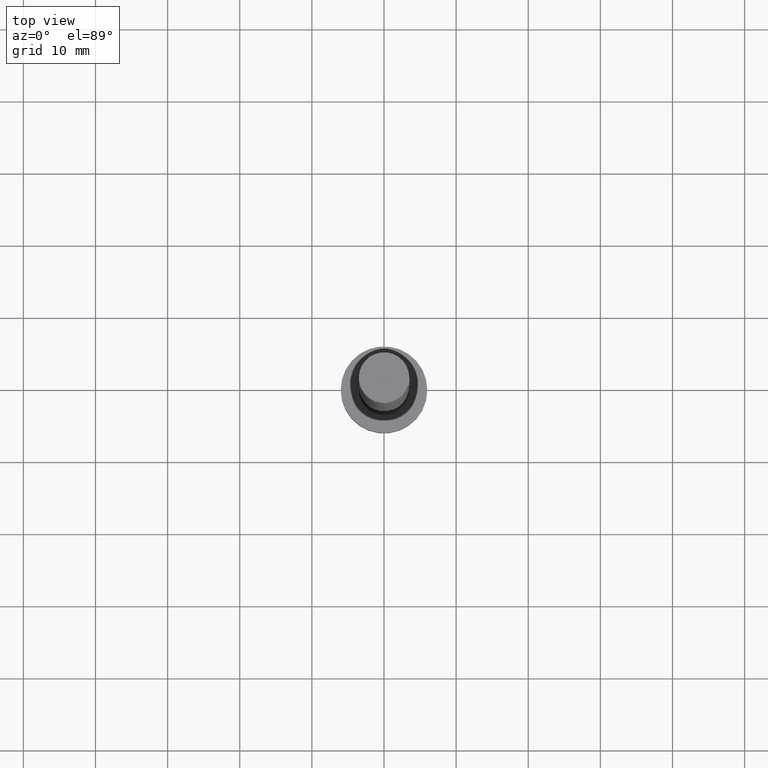
[diagram: clean part render]
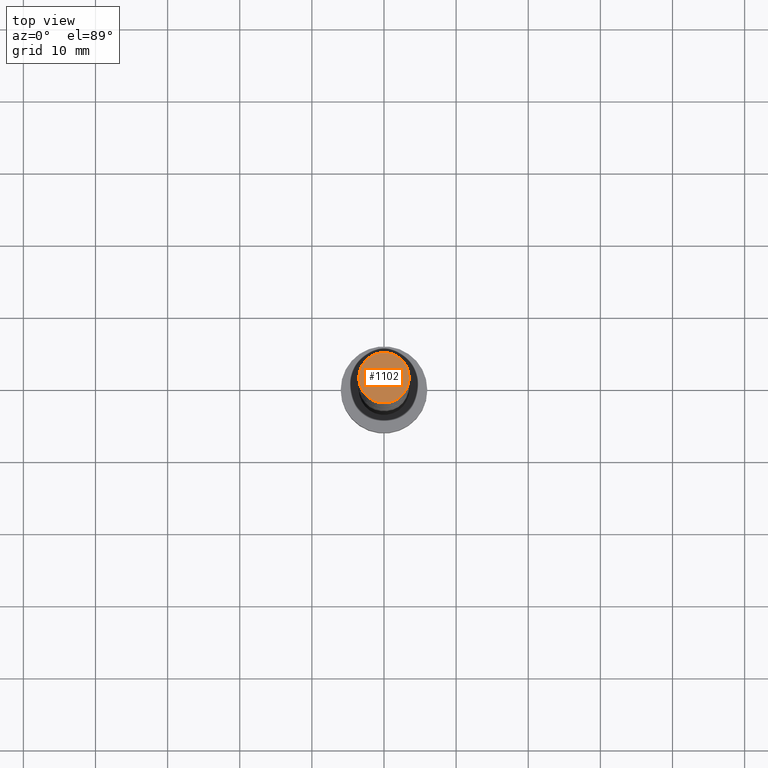
[diagram: same view with one face highlighted and labeled with its STEP entity id]
A machine part, top view. The second image highlights one B-rep face of the part: STEP entity #1102.
In plain terms, the highlighted planar face has unit normal (0, 0, 1).
Its self-contained STEP definition (entity closure, byte-faithful):
#3 = DIRECTION ( 'NONE',  ( 0.000000000000000000, 0.000000000000000000, 1.000000000000000000 ) ) ;
#9 = CIRCLE ( 'NONE', #902, 3.500000000000000000 ) ;
#15 = AXIS2_PLACEMENT_3D ( 'NONE', #1247, #698, #1131 ) ;
#42 = CIRCLE ( 'NONE', #822, 3.500000000000000000 ) ;
#50 = ORIENTED_EDGE ( 'NONE', *, *, #1374, .T. ) ;
#305 = CARTESIAN_POINT ( 'NONE',  ( -3.500000000000000000, 0.000000000000000000, 100.0000000000000000 ) ) ;
#347 = FACE_OUTER_BOUND ( 'NONE', #427, .T. ) ;
#348 = CARTESIAN_POINT ( 'NONE',  ( 0.000000000000000000, 0.000000000000000000, 100.0000000000000000 ) ) ;
#362 = EDGE_CURVE ( 'NONE', #1387, #589, #42, .T. ) ;
#427 = EDGE_LOOP ( 'NONE', ( #1006, #50 ) ) ;
#558 = DIRECTION ( 'NONE',  ( 1.000000000000000000, 0.000000000000000000, 0.000000000000000000 ) ) ;
#589 = VERTEX_POINT ( 'NONE', #987 ) ;
#698 = DIRECTION ( 'NONE',  ( 0.000000000000000000, 0.000000000000000000, 1.000000000000000000 ) ) ;
#785 = DIRECTION ( 'NONE',  ( 1.000000000000000000, 0.000000000000000000, 0.000000000000000000 ) ) ;
#822 = AXIS2_PLACEMENT_3D ( 'NONE', #348, #3, #785 ) ;
#902 = AXIS2_PLACEMENT_3D ( 'NONE', #1206, #1103, #558 ) ;
#908 = PLANE ( 'NONE',  #15 ) ;
#987 = CARTESIAN_POINT ( 'NONE',  ( 3.500000000000000000, 4.286263797015736595E-16, 100.0000000000000000 ) ) ;
#1006 = ORIENTED_EDGE ( 'NONE', *, *, #362, .T. ) ;
#1102 = ADVANCED_FACE ( 'NONE', ( #347 ), #908, .T. ) ;
#1103 = DIRECTION ( 'NONE',  ( 0.000000000000000000, 0.000000000000000000, 1.000000000000000000 ) ) ;
#1131 = DIRECTION ( 'NONE',  ( 1.000000000000000000, 0.000000000000000000, -0.000000000000000000 ) ) ;
#1206 = CARTESIAN_POINT ( 'NONE',  ( 0.000000000000000000, 0.000000000000000000, 100.0000000000000000 ) ) ;
#1247 = CARTESIAN_POINT ( 'NONE',  ( 0.000000000000000000, 0.000000000000000000, 100.0000000000000000 ) ) ;
#1374 = EDGE_CURVE ( 'NONE', #589, #1387, #9, .T. ) ;
#1387 = VERTEX_POINT ( 'NONE', #305 ) ;